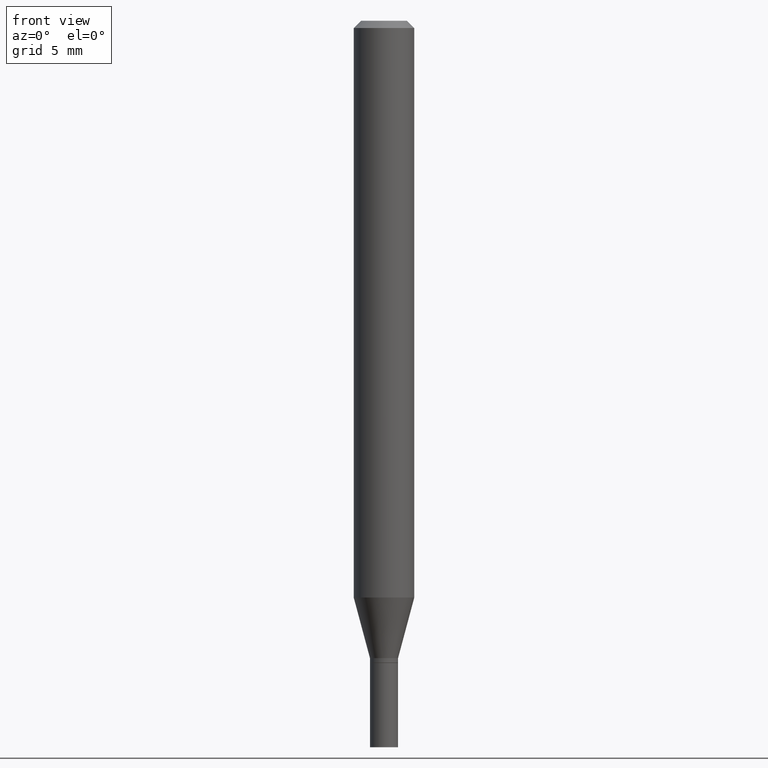
[diagram: clean part render]
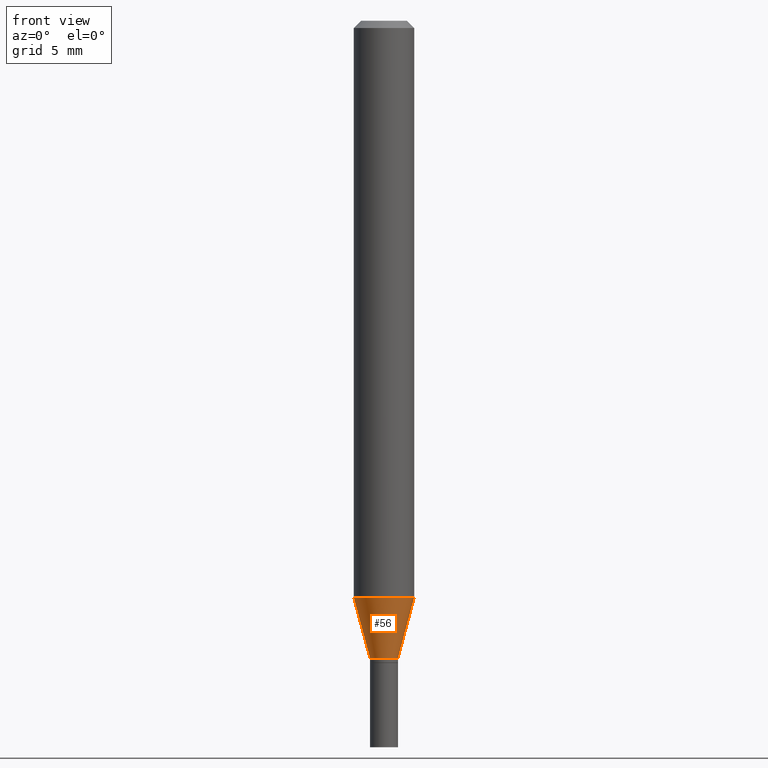
[diagram: same view with one face highlighted and labeled with its STEP entity id]
A machine part, front view. The second image highlights one B-rep face of the part: STEP entity #56.
In plain terms, the highlighted conical surface has half-angle 15 deg.
Its self-contained STEP definition (entity closure, byte-faithful):
#2 = CARTESIAN_POINT ( 'NONE',  ( 0.02899999999999992167, -4.797295359570480345E-15, -1.316000000000000059 ) ) ;
#5 = DIRECTION ( 'NONE',  ( -2.445468806185136597E-29, 3.491481338843145583E-15, 1.000000000000000000 ) ) ;
#7 = VERTEX_POINT ( 'NONE', #71 ) ;
#39 = DIRECTION ( 'NONE',  ( 0.2588190451025213501, 1.565188264969621968E-15, 0.9659258262890682012 ) ) ;
#52 = CARTESIAN_POINT ( 'NONE',  ( -0.06250000000000000000, -3.714182309434436740E-15, -1.190976297946442664 ) ) ;
#56 = ADVANCED_FACE ( 'NONE', ( #147 ), #449, .T. ) ;
#61 = DIRECTION ( 'NONE',  ( -2.445468806185136597E-29, 3.491481338843145583E-15, 1.000000000000000000 ) ) ;
#71 = CARTESIAN_POINT ( 'NONE',  ( -0.02899999999999992167, -4.051457178990793956E-15, -1.316000000000000059 ) ) ;
#76 = EDGE_CURVE ( 'NONE', #7, #366, #175, .T. ) ;
#77 = ORIENTED_EDGE ( 'NONE', *, *, #465, .T. ) ;
#106 = DIRECTION ( 'NONE',  ( 1.000000000000000000, -6.982962677686262766E-15, 0.000000000000000000 ) ) ;
#133 = EDGE_CURVE ( 'NONE', #7, #466, #216, .T. ) ;
#141 = DIRECTION ( 'NONE',  ( -0.2588190451025213501, 5.211531920934551042E-15, 0.9659258262890682012 ) ) ;
#147 = FACE_OUTER_BOUND ( 'NONE', #173, .T. ) ;
#148 = CARTESIAN_POINT ( 'NONE',  ( 2.912495385533880761E-29, -4.158271519284499356E-15, -1.190976297946442664 ) ) ;
#154 = AXIS2_PLACEMENT_3D ( 'NONE', #148, #5, #106 ) ;
#163 = AXIS2_PLACEMENT_3D ( 'NONE', #425, #61, #179 ) ;
#173 = EDGE_LOOP ( 'NONE', ( #267, #263, #77, #317 ) ) ;
#175 = LINE ( 'NONE', #251, #341 ) ;
#179 = DIRECTION ( 'NONE',  ( 1.000000000000000000, -6.982962677686251722E-15, 0.000000000000000000 ) ) ;
#186 = DIRECTION ( 'NONE',  ( 1.000000000000000000, -6.982962677686251722E-15, 0.000000000000000000 ) ) ;
#216 = CIRCLE ( 'NONE', #457, 0.02899999999999992167 ) ;
#245 = CARTESIAN_POINT ( 'NONE',  ( 3.218236948939640273E-29, -4.594789441917579620E-15, -1.316000000000000059 ) ) ;
#251 = CARTESIAN_POINT ( 'NONE',  ( -0.02899999999999992167, -4.388732048547151961E-15, -1.316000000000000059 ) ) ;
#255 = LINE ( 'NONE', #365, #331 ) ;
#263 = ORIENTED_EDGE ( 'NONE', *, *, #133, .T. ) ;
#266 = CIRCLE ( 'NONE', #154, 0.06250000000000000000 ) ;
#267 = ORIENTED_EDGE ( 'NONE', *, *, #76, .F. ) ;
#317 = ORIENTED_EDGE ( 'NONE', *, *, #432, .F. ) ;
#331 = VECTOR ( 'NONE', #39, 39.37007874015747433 ) ;
#332 = VERTEX_POINT ( 'NONE', #448 ) ;
#341 = VECTOR ( 'NONE', #141, 39.37007874015747433 ) ;
#349 = DIRECTION ( 'NONE',  ( -2.445468806185136597E-29, 3.491481338843145583E-15, 1.000000000000000000 ) ) ;
#365 = CARTESIAN_POINT ( 'NONE',  ( 0.02899999999999992167, -4.797295359570480345E-15, -1.316000000000000059 ) ) ;
#366 = VERTEX_POINT ( 'NONE', #52 ) ;
#425 = CARTESIAN_POINT ( 'NONE',  ( 3.218236948939640273E-29, -4.594789441917579620E-15, -1.316000000000000059 ) ) ;
#432 = EDGE_CURVE ( 'NONE', #366, #332, #266, .T. ) ;
#448 = CARTESIAN_POINT ( 'NONE',  ( 0.06250000000000000000, -4.594706686639889448E-15, -1.190976297946442664 ) ) ;
#449 = CONICAL_SURFACE ( 'NONE', #163, 0.02899999999999992167, 0.2617993877991500740 ) ;
#457 = AXIS2_PLACEMENT_3D ( 'NONE', #245, #349, #186 ) ;
#465 = EDGE_CURVE ( 'NONE', #466, #332, #255, .T. ) ;
#466 = VERTEX_POINT ( 'NONE', #2 ) ;